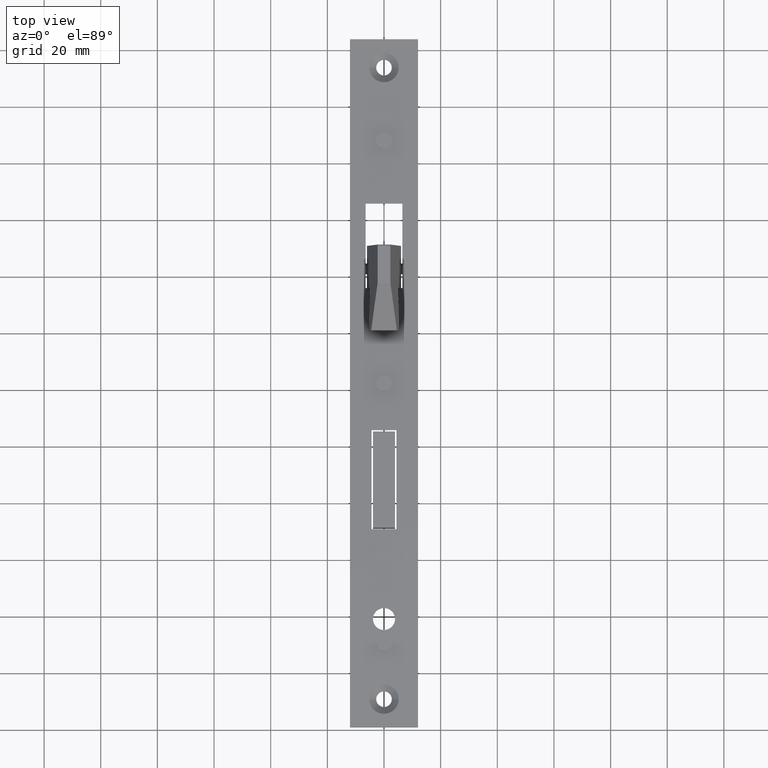
[diagram: clean part render]
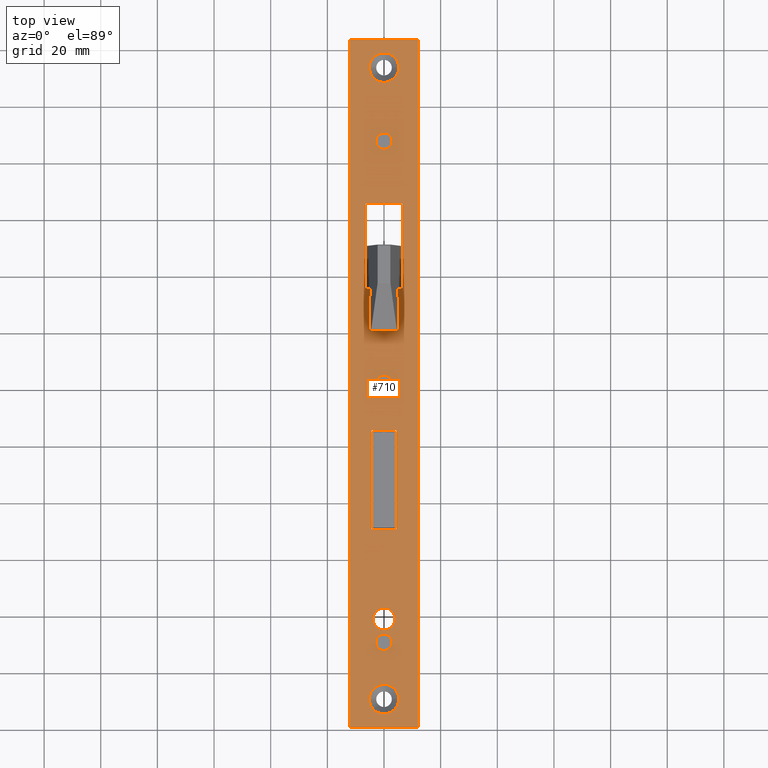
[diagram: same view with one face highlighted and labeled with its STEP entity id]
A machine part, top view. The second image highlights one B-rep face of the part: STEP entity #710.
In plain terms, the highlighted planar face has unit normal (0, 0, -1).
Its self-contained STEP definition (entity closure, byte-faithful):
#8 = ORIENTED_EDGE ( 'NONE', *, *, #12527, .F. ) ;
#25 = DIRECTION ( 'NONE',  ( 1.000000000000000000, 1.460819769243627200E-014, -0.0000000000000000000 ) ) ;
#106 = LINE ( 'NONE', #2830, #6565 ) ;
#208 = ORIENTED_EDGE ( 'NONE', *, *, #8479, .F. ) ;
#443 = VERTEX_POINT ( 'NONE', #11256 ) ;
#447 = EDGE_CURVE ( 'NONE', #8364, #2414, #11923, .T. ) ;
#474 = LINE ( 'NONE', #11585, #12403 ) ;
#521 = EDGE_CURVE ( 'NONE', #2731, #4292, #685, .T. ) ;
#557 = AXIS2_PLACEMENT_3D ( 'NONE', #5731, #8936, #11149 ) ;
#560 = VERTEX_POINT ( 'NONE', #2893 ) ;
#574 = CARTESIAN_POINT ( 'NONE',  ( 2.850000000000022700, 121.5000000000000100, 3.000000000000000000 ) ) ;
#596 = CARTESIAN_POINT ( 'NONE',  ( -6.499999999999999100, 185.0000000000000000, 3.000000000000000000 ) ) ;
#623 = AXIS2_PLACEMENT_3D ( 'NONE', #11137, #6710, #6761 ) ;
#685 = LINE ( 'NONE', #12719, #11569 ) ;
#710 = ADVANCED_FACE ( 'NONE', ( #10214, #13462, #9363, #7635, #7300, #4391, #12260, #12774, #2365 ), #3228, .F. ) ;
#889 = CARTESIAN_POINT ( 'NONE',  ( -4.400000000000001200, 70.00000000000000000, 3.000000000000000000 ) ) ;
#922 = DIRECTION ( 'NONE',  ( -1.000000000000000000, 0.0000000000000000000, 0.0000000000000000000 ) ) ;
#1043 = EDGE_CURVE ( 'NONE', #3014, #11774, #474, .T. ) ;
#1044 = CIRCLE ( 'NONE', #6810, 2.849999999999986800 ) ;
#1236 = VERTEX_POINT ( 'NONE', #5033 ) ;
#1368 = ORIENTED_EDGE ( 'NONE', *, *, #6465, .T. ) ;
#1556 = CARTESIAN_POINT ( 'NONE',  ( 6.500000000000000000, 155.0000000000000000, 3.000000000000000000 ) ) ;
#1604 = VERTEX_POINT ( 'NONE', #8686 ) ;
#1650 = ORIENTED_EDGE ( 'NONE', *, *, #521, .T. ) ;
#1674 = VECTOR ( 'NONE', #13117, 1000.000000000000000 ) ;
#1691 = CARTESIAN_POINT ( 'NONE',  ( 4.653657836759938000E-015, 207.0000000000000000, 3.000000000000000000 ) ) ;
#1790 = CIRCLE ( 'NONE', #3723, 5.200000000000001100 ) ;
#1816 = CARTESIAN_POINT ( 'NONE',  ( -4.400000000000001200, 70.00000000000000000, 3.000000000000000000 ) ) ;
#2052 = EDGE_CURVE ( 'NONE', #6291, #4764, #9653, .T. ) ;
#2107 = VECTOR ( 'NONE', #25, 1000.000000000000000 ) ;
#2365 = FACE_BOUND ( 'NONE', #13060, .T. ) ;
#2369 = CARTESIAN_POINT ( 'NONE',  ( -2.849999999999992100, 121.5000000000000100, 3.000000000000000000 ) ) ;
#2414 = VERTEX_POINT ( 'NONE', #596 ) ;
#2436 = ORIENTED_EDGE ( 'NONE', *, *, #13562, .F. ) ;
#2468 = DIRECTION ( 'NONE',  ( -0.0000000000000000000, -1.000000000000000000, -0.0000000000000000000 ) ) ;
#2511 = CARTESIAN_POINT ( 'NONE',  ( 3.900000000000002100, 38.29999999999999700, 3.000000000000000000 ) ) ;
#2534 = CARTESIAN_POINT ( 'NONE',  ( 6.500000000000000000, 185.0000000000000000, 3.000000000000000000 ) ) ;
#2544 = ORIENTED_EDGE ( 'NONE', *, *, #9562, .F. ) ;
#2639 = ORIENTED_EDGE ( 'NONE', *, *, #10922, .F. ) ;
#2679 = DIRECTION ( 'NONE',  ( -1.000000000000000000, 0.0000000000000000000, 0.0000000000000000000 ) ) ;
#2705 = DIRECTION ( 'NONE',  ( -1.000000000000000000, -7.304098846218136000E-015, -0.0000000000000000000 ) ) ;
#2731 = VERTEX_POINT ( 'NONE', #3586 ) ;
#2830 = CARTESIAN_POINT ( 'NONE',  ( -12.00000000000000000, 243.0000000000000000, 3.000000000000000000 ) ) ;
#2841 = CIRCLE ( 'NONE', #12577, 2.849999999999986800 ) ;
#2893 = CARTESIAN_POINT ( 'NONE',  ( -4.400000000000001200, 105.0000000000000100, 3.000000000000000000 ) ) ;
#3014 = VERTEX_POINT ( 'NONE', #889 ) ;
#3054 = AXIS2_PLACEMENT_3D ( 'NONE', #6293, #5370, #9691 ) ;
#3070 = DIRECTION ( 'NONE',  ( -0.0000000000000000000, -0.0000000000000000000, 1.000000000000000000 ) ) ;
#3078 = DIRECTION ( 'NONE',  ( -0.0000000000000000000, -0.0000000000000000000, 1.000000000000000000 ) ) ;
#3079 = AXIS2_PLACEMENT_3D ( 'NONE', #13260, #9954, #5592 ) ;
#3151 = VERTEX_POINT ( 'NONE', #2511 ) ;
#3188 = DIRECTION ( 'NONE',  ( -0.0000000000000000000, -0.0000000000000000000, 1.000000000000000000 ) ) ;
#3228 = PLANE ( 'NONE',  #557 ) ;
#3474 = DIRECTION ( 'NONE',  ( 1.000000000000000000, 0.0000000000000000000, 0.0000000000000000000 ) ) ;
#3586 = CARTESIAN_POINT ( 'NONE',  ( -12.00000000000000000, 243.0000000000000000, 3.000000000000000000 ) ) ;
#3723 = AXIS2_PLACEMENT_3D ( 'NONE', #10879, #4361, #3474 ) ;
#3783 = CARTESIAN_POINT ( 'NONE',  ( 4.653657836759938000E-015, 207.0000000000000000, 3.000000000000000000 ) ) ;
#3904 = VERTEX_POINT ( 'NONE', #7639 ) ;
#4110 = EDGE_CURVE ( 'NONE', #3151, #7578, #10300, .T. ) ;
#4129 = DIRECTION ( 'NONE',  ( -0.0000000000000000000, -0.0000000000000000000, 1.000000000000000000 ) ) ;
#4263 = EDGE_CURVE ( 'NONE', #14172, #6639, #10624, .T. ) ;
#4292 = VERTEX_POINT ( 'NONE', #11042 ) ;
#4361 = DIRECTION ( 'NONE',  ( -0.0000000000000000000, -0.0000000000000000000, 1.000000000000000000 ) ) ;
#4391 = FACE_BOUND ( 'NONE', #8724, .T. ) ;
#4542 = EDGE_CURVE ( 'NONE', #560, #3014, #9770, .T. ) ;
#4660 = ORIENTED_EDGE ( 'NONE', *, *, #7843, .T. ) ;
#4744 = ORIENTED_EDGE ( 'NONE', *, *, #1043, .F. ) ;
#4764 = VERTEX_POINT ( 'NONE', #13891 ) ;
#4775 = VERTEX_POINT ( 'NONE', #5387 ) ;
#4897 = EDGE_CURVE ( 'NONE', #7523, #8435, #6687, .T. ) ;
#4899 = LINE ( 'NONE', #5117, #10545 ) ;
#4945 = CARTESIAN_POINT ( 'NONE',  ( -2.849999999999998300, 30.00000000000000000, 3.000000000000000000 ) ) ;
#4985 = VECTOR ( 'NONE', #5133, 1000.000000000000000 ) ;
#5033 = CARTESIAN_POINT ( 'NONE',  ( -5.200000000000001100, 232.9999999999999700, 3.000000000000000000 ) ) ;
#5058 = AXIS2_PLACEMENT_3D ( 'NONE', #9707, #3188, #12821 ) ;
#5066 = DIRECTION ( 'NONE',  ( 0.0000000000000000000, 1.000000000000000000, 0.0000000000000000000 ) ) ;
#5093 = CARTESIAN_POINT ( 'NONE',  ( 4.400000000000001200, 70.00000000000000000, 3.000000000000000000 ) ) ;
#5117 = CARTESIAN_POINT ( 'NONE',  ( 6.500000000000000000, 155.0000000000000000, 3.000000000000000000 ) ) ;
#5133 = DIRECTION ( 'NONE',  ( -0.0000000000000000000, -1.000000000000000000, -0.0000000000000000000 ) ) ;
#5138 = CARTESIAN_POINT ( 'NONE',  ( 2.849999999999991700, 207.0000000000000000, 3.000000000000000000 ) ) ;
#5213 = CIRCLE ( 'NONE', #3054, 3.900000000000002100 ) ;
#5235 = DIRECTION ( 'NONE',  ( -1.000000000000000000, 0.0000000000000000000, 0.0000000000000000000 ) ) ;
#5246 = VERTEX_POINT ( 'NONE', #5138 ) ;
#5358 = AXIS2_PLACEMENT_3D ( 'NONE', #7331, #4129, #13799 ) ;
#5370 = DIRECTION ( 'NONE',  ( 0.0000000000000000000, 0.0000000000000000000, 1.000000000000000000 ) ) ;
#5387 = CARTESIAN_POINT ( 'NONE',  ( 5.200000000000001100, 232.9999999999999700, 3.000000000000000000 ) ) ;
#5396 = AXIS2_PLACEMENT_3D ( 'NONE', #8498, #3078, #5235 ) ;
#5415 = CARTESIAN_POINT ( 'NONE',  ( -2.699999999999998800, 155.0000000000000600, 3.000000000000000000 ) ) ;
#5555 = CARTESIAN_POINT ( 'NONE',  ( 5.200000000000001100, 9.999999999999994700, 3.000000000000000000 ) ) ;
#5592 = DIRECTION ( 'NONE',  ( 1.000000000000000000, 0.0000000000000000000, 0.0000000000000000000 ) ) ;
#5731 = CARTESIAN_POINT ( 'NONE',  ( 0.0000000000000000000, 0.0000000000000000000, 3.000000000000000000 ) ) ;
#5835 = CARTESIAN_POINT ( 'NONE',  ( 2.699999999999999700, 184.9999999999999700, 3.000000000000000000 ) ) ;
#5883 = VERTEX_POINT ( 'NONE', #9173 ) ;
#6117 = VECTOR ( 'NONE', #2705, 1000.000000000000000 ) ;
#6211 = EDGE_LOOP ( 'NONE', ( #11491, #208 ) ) ;
#6291 = VERTEX_POINT ( 'NONE', #4945 ) ;
#6293 = CARTESIAN_POINT ( 'NONE',  ( 0.0000000000000000000, 38.29999999999999700, 3.000000000000000000 ) ) ;
#6422 = LINE ( 'NONE', #9636, #13098 ) ;
#6465 = EDGE_CURVE ( 'NONE', #1604, #443, #13637, .T. ) ;
#6561 = EDGE_CURVE ( 'NONE', #2414, #14172, #9530, .T. ) ;
#6565 = VECTOR ( 'NONE', #8306, 1000.000000000000000 ) ;
#6608 = VECTOR ( 'NONE', #2468, 1000.000000000000000 ) ;
#6639 = VERTEX_POINT ( 'NONE', #1556 ) ;
#6687 = CIRCLE ( 'NONE', #9690, 2.850000000000007600 ) ;
#6710 = DIRECTION ( 'NONE',  ( -0.0000000000000000000, -0.0000000000000000000, 1.000000000000000000 ) ) ;
#6761 = DIRECTION ( 'NONE',  ( 1.000000000000000000, 0.0000000000000000000, 0.0000000000000000000 ) ) ;
#6810 = AXIS2_PLACEMENT_3D ( 'NONE', #3783, #13659, #2679 ) ;
#7005 = EDGE_CURVE ( 'NONE', #7578, #3151, #5213, .T. ) ;
#7129 = DIRECTION ( 'NONE',  ( -0.0000000000000000000, -1.000000000000000000, -0.0000000000000000000 ) ) ;
#7152 = VERTEX_POINT ( 'NONE', #5555 ) ;
#7218 = ORIENTED_EDGE ( 'NONE', *, *, #11744, .F. ) ;
#7300 = FACE_BOUND ( 'NONE', #9161, .T. ) ;
#7331 = CARTESIAN_POINT ( 'NONE',  ( 0.0000000000000000000, 30.00000000000000000, 3.000000000000000000 ) ) ;
#7348 = AXIS2_PLACEMENT_3D ( 'NONE', #11819, #3070, #922 ) ;
#7523 = VERTEX_POINT ( 'NONE', #574 ) ;
#7564 = EDGE_CURVE ( 'NONE', #3904, #5246, #2841, .T. ) ;
#7578 = VERTEX_POINT ( 'NONE', #12382 ) ;
#7607 = CARTESIAN_POINT ( 'NONE',  ( 12.00000000000000000, 0.0000000000000000000, 3.000000000000000000 ) ) ;
#7635 = FACE_BOUND ( 'NONE', #10975, .T. ) ;
#7639 = CARTESIAN_POINT ( 'NONE',  ( -2.849999999999981900, 207.0000000000000000, 3.000000000000000000 ) ) ;
#7843 = EDGE_CURVE ( 'NONE', #443, #2731, #106, .T. ) ;
#7922 = CARTESIAN_POINT ( 'NONE',  ( 4.400000000000001200, 105.0000000000000100, 3.000000000000000000 ) ) ;
#8121 = DIRECTION ( 'NONE',  ( 1.000000000000000000, 0.0000000000000000000, 0.0000000000000000000 ) ) ;
#8306 = DIRECTION ( 'NONE',  ( -1.000000000000000000, -0.0000000000000000000, -0.0000000000000000000 ) ) ;
#8364 = VERTEX_POINT ( 'NONE', #2534 ) ;
#8435 = VERTEX_POINT ( 'NONE', #2369 ) ;
#8443 = DIRECTION ( 'NONE',  ( -1.000000000000000000, -0.0000000000000000000, -0.0000000000000000000 ) ) ;
#8479 = EDGE_CURVE ( 'NONE', #5883, #7152, #1790, .T. ) ;
#8498 = CARTESIAN_POINT ( 'NONE',  ( 0.0000000000000000000, 30.00000000000000000, 3.000000000000000000 ) ) ;
#8553 = ORIENTED_EDGE ( 'NONE', *, *, #13875, .T. ) ;
#8637 = VERTEX_POINT ( 'NONE', #7922 ) ;
#8686 = CARTESIAN_POINT ( 'NONE',  ( 12.00000000000000000, 0.0000000000000000000, 3.000000000000000000 ) ) ;
#8697 = CARTESIAN_POINT ( 'NONE',  ( -6.499999999999999100, 155.0000000000000000, 3.000000000000000000 ) ) ;
#8724 = EDGE_LOOP ( 'NONE', ( #12605, #7218, #13387, #4744 ) ) ;
#8837 = DIRECTION ( 'NONE',  ( -0.0000000000000000000, -0.0000000000000000000, 1.000000000000000000 ) ) ;
#8842 = EDGE_CURVE ( 'NONE', #8435, #7523, #10793, .T. ) ;
#8930 = ORIENTED_EDGE ( 'NONE', *, *, #4263, .F. ) ;
#8936 = DIRECTION ( 'NONE',  ( 0.0000000000000000000, 0.0000000000000000000, -1.000000000000000000 ) ) ;
#8950 = CIRCLE ( 'NONE', #3079, 5.200000000000001100 ) ;
#8964 = CARTESIAN_POINT ( 'NONE',  ( -12.00000000000000000, 0.0000000000000000000, 3.000000000000000000 ) ) ;
#8993 = CARTESIAN_POINT ( 'NONE',  ( 1.512438796946981000E-014, 121.5000000000000100, 3.000000000000000000 ) ) ;
#9161 = EDGE_LOOP ( 'NONE', ( #13846, #2544 ) ) ;
#9173 = CARTESIAN_POINT ( 'NONE',  ( -5.200000000000001100, 9.999999999999994700, 3.000000000000000000 ) ) ;
#9185 = CIRCLE ( 'NONE', #5058, 5.200000000000001100 ) ;
#9330 = DIRECTION ( 'NONE',  ( -1.000000000000000000, 0.0000000000000000000, 0.0000000000000000000 ) ) ;
#9340 = AXIS2_PLACEMENT_3D ( 'NONE', #11345, #12523, #8121 ) ;
#9363 = FACE_BOUND ( 'NONE', #13589, .T. ) ;
#9412 = DIRECTION ( 'NONE',  ( 1.000000000000000000, 0.0000000000000000000, 0.0000000000000000000 ) ) ;
#9470 = ORIENTED_EDGE ( 'NONE', *, *, #4897, .F. ) ;
#9530 = LINE ( 'NONE', #10005, #6608 ) ;
#9562 = EDGE_CURVE ( 'NONE', #4764, #6291, #9598, .T. ) ;
#9598 = CIRCLE ( 'NONE', #5396, 2.849999999999998300 ) ;
#9623 = EDGE_LOOP ( 'NONE', ( #1650, #8553, #1368, #4660 ) ) ;
#9636 = CARTESIAN_POINT ( 'NONE',  ( 4.400000000000001200, 70.00000000000000000, 3.000000000000000000 ) ) ;
#9653 = CIRCLE ( 'NONE', #5358, 2.849999999999998300 ) ;
#9690 = AXIS2_PLACEMENT_3D ( 'NONE', #8993, #8837, #10090 ) ;
#9691 = DIRECTION ( 'NONE',  ( 1.000000000000000000, 0.0000000000000000000, 0.0000000000000000000 ) ) ;
#9707 = CARTESIAN_POINT ( 'NONE',  ( 0.0000000000000000000, 232.9999999999999700, 3.000000000000000000 ) ) ;
#9723 = EDGE_LOOP ( 'NONE', ( #13857, #8930, #11658, #9952 ) ) ;
#9770 = LINE ( 'NONE', #1816, #4985 ) ;
#9952 = ORIENTED_EDGE ( 'NONE', *, *, #447, .F. ) ;
#9954 = DIRECTION ( 'NONE',  ( -0.0000000000000000000, -0.0000000000000000000, 1.000000000000000000 ) ) ;
#10005 = CARTESIAN_POINT ( 'NONE',  ( -6.499999999999999100, 155.0000000000000000, 3.000000000000000000 ) ) ;
#10090 = DIRECTION ( 'NONE',  ( -1.000000000000000000, 0.0000000000000000000, 0.0000000000000000000 ) ) ;
#10214 = FACE_BOUND ( 'NONE', #11090, .T. ) ;
#10279 = ORIENTED_EDGE ( 'NONE', *, *, #7005, .F. ) ;
#10300 = CIRCLE ( 'NONE', #9340, 3.900000000000002100 ) ;
#10366 = LINE ( 'NONE', #13864, #11366 ) ;
#10422 = DIRECTION ( 'NONE',  ( -0.0000000000000000000, -0.0000000000000000000, 1.000000000000000000 ) ) ;
#10528 = ORIENTED_EDGE ( 'NONE', *, *, #4110, .F. ) ;
#10545 = VECTOR ( 'NONE', #5066, 1000.000000000000000 ) ;
#10566 = LINE ( 'NONE', #8964, #12809 ) ;
#10570 = ORIENTED_EDGE ( 'NONE', *, *, #8842, .F. ) ;
#10624 = LINE ( 'NONE', #5415, #2107 ) ;
#10763 = EDGE_CURVE ( 'NONE', #6639, #8364, #4899, .T. ) ;
#10793 = CIRCLE ( 'NONE', #7348, 2.850000000000007600 ) ;
#10804 = DIRECTION ( 'NONE',  ( 0.0000000000000000000, 1.000000000000000000, 0.0000000000000000000 ) ) ;
#10879 = CARTESIAN_POINT ( 'NONE',  ( 4.336808689942017700E-016, 9.999999999999994700, 3.000000000000000000 ) ) ;
#10922 = EDGE_CURVE ( 'NONE', #1236, #4775, #9185, .T. ) ;
#10975 = EDGE_LOOP ( 'NONE', ( #10570, #9470 ) ) ;
#11042 = CARTESIAN_POINT ( 'NONE',  ( -12.00000000000000000, 0.0000000000000000000, 3.000000000000000000 ) ) ;
#11090 = EDGE_LOOP ( 'NONE', ( #8, #2639 ) ) ;
#11137 = CARTESIAN_POINT ( 'NONE',  ( 4.336808689942017700E-016, 9.999999999999994700, 3.000000000000000000 ) ) ;
#11149 = DIRECTION ( 'NONE',  ( -1.000000000000000000, 0.0000000000000000000, -0.0000000000000000000 ) ) ;
#11256 = CARTESIAN_POINT ( 'NONE',  ( 12.00000000000000000, 243.0000000000000000, 3.000000000000000000 ) ) ;
#11345 = CARTESIAN_POINT ( 'NONE',  ( 0.0000000000000000000, 38.29999999999999700, 3.000000000000000000 ) ) ;
#11366 = VECTOR ( 'NONE', #8443, 1000.000000000000000 ) ;
#11491 = ORIENTED_EDGE ( 'NONE', *, *, #13224, .F. ) ;
#11569 = VECTOR ( 'NONE', #7129, 1000.000000000000000 ) ;
#11585 = CARTESIAN_POINT ( 'NONE',  ( -4.400000000000001200, 70.00000000000000000, 3.000000000000000000 ) ) ;
#11658 = ORIENTED_EDGE ( 'NONE', *, *, #6561, .F. ) ;
#11744 = EDGE_CURVE ( 'NONE', #8637, #560, #10366, .T. ) ;
#11774 = VERTEX_POINT ( 'NONE', #5093 ) ;
#11819 = CARTESIAN_POINT ( 'NONE',  ( 1.512438796946981000E-014, 121.5000000000000100, 3.000000000000000000 ) ) ;
#11852 = EDGE_CURVE ( 'NONE', #11774, #8637, #6422, .T. ) ;
#11923 = LINE ( 'NONE', #5835, #6117 ) ;
#12260 = FACE_OUTER_BOUND ( 'NONE', #9623, .T. ) ;
#12382 = CARTESIAN_POINT ( 'NONE',  ( -3.900000000000002100, 38.29999999999999700, 3.000000000000000000 ) ) ;
#12403 = VECTOR ( 'NONE', #9412, 1000.000000000000000 ) ;
#12523 = DIRECTION ( 'NONE',  ( 0.0000000000000000000, 0.0000000000000000000, 1.000000000000000000 ) ) ;
#12527 = EDGE_CURVE ( 'NONE', #4775, #1236, #8950, .T. ) ;
#12577 = AXIS2_PLACEMENT_3D ( 'NONE', #1691, #10422, #9330 ) ;
#12605 = ORIENTED_EDGE ( 'NONE', *, *, #4542, .F. ) ;
#12719 = CARTESIAN_POINT ( 'NONE',  ( -12.00000000000000000, 0.0000000000000000000, 3.000000000000000000 ) ) ;
#12774 = FACE_BOUND ( 'NONE', #9723, .T. ) ;
#12809 = VECTOR ( 'NONE', #13538, 1000.000000000000000 ) ;
#12821 = DIRECTION ( 'NONE',  ( 1.000000000000000000, 0.0000000000000000000, 0.0000000000000000000 ) ) ;
#13045 = ORIENTED_EDGE ( 'NONE', *, *, #7564, .F. ) ;
#13060 = EDGE_LOOP ( 'NONE', ( #10279, #10528 ) ) ;
#13098 = VECTOR ( 'NONE', #10804, 1000.000000000000000 ) ;
#13117 = DIRECTION ( 'NONE',  ( 0.0000000000000000000, 1.000000000000000000, 0.0000000000000000000 ) ) ;
#13176 = CIRCLE ( 'NONE', #623, 5.200000000000001100 ) ;
#13224 = EDGE_CURVE ( 'NONE', #7152, #5883, #13176, .T. ) ;
#13260 = CARTESIAN_POINT ( 'NONE',  ( 0.0000000000000000000, 232.9999999999999700, 3.000000000000000000 ) ) ;
#13387 = ORIENTED_EDGE ( 'NONE', *, *, #11852, .F. ) ;
#13462 = FACE_BOUND ( 'NONE', #6211, .T. ) ;
#13538 = DIRECTION ( 'NONE',  ( 1.000000000000000000, 0.0000000000000000000, 0.0000000000000000000 ) ) ;
#13562 = EDGE_CURVE ( 'NONE', #5246, #3904, #1044, .T. ) ;
#13589 = EDGE_LOOP ( 'NONE', ( #13045, #2436 ) ) ;
#13637 = LINE ( 'NONE', #7607, #1674 ) ;
#13659 = DIRECTION ( 'NONE',  ( -0.0000000000000000000, -0.0000000000000000000, 1.000000000000000000 ) ) ;
#13799 = DIRECTION ( 'NONE',  ( -1.000000000000000000, 0.0000000000000000000, 0.0000000000000000000 ) ) ;
#13846 = ORIENTED_EDGE ( 'NONE', *, *, #2052, .F. ) ;
#13857 = ORIENTED_EDGE ( 'NONE', *, *, #10763, .F. ) ;
#13864 = CARTESIAN_POINT ( 'NONE',  ( -4.400000000000001200, 105.0000000000000100, 3.000000000000000000 ) ) ;
#13875 = EDGE_CURVE ( 'NONE', #4292, #1604, #10566, .T. ) ;
#13891 = CARTESIAN_POINT ( 'NONE',  ( 2.849999999999998300, 30.00000000000000000, 3.000000000000000000 ) ) ;
#14172 = VERTEX_POINT ( 'NONE', #8697 ) ;